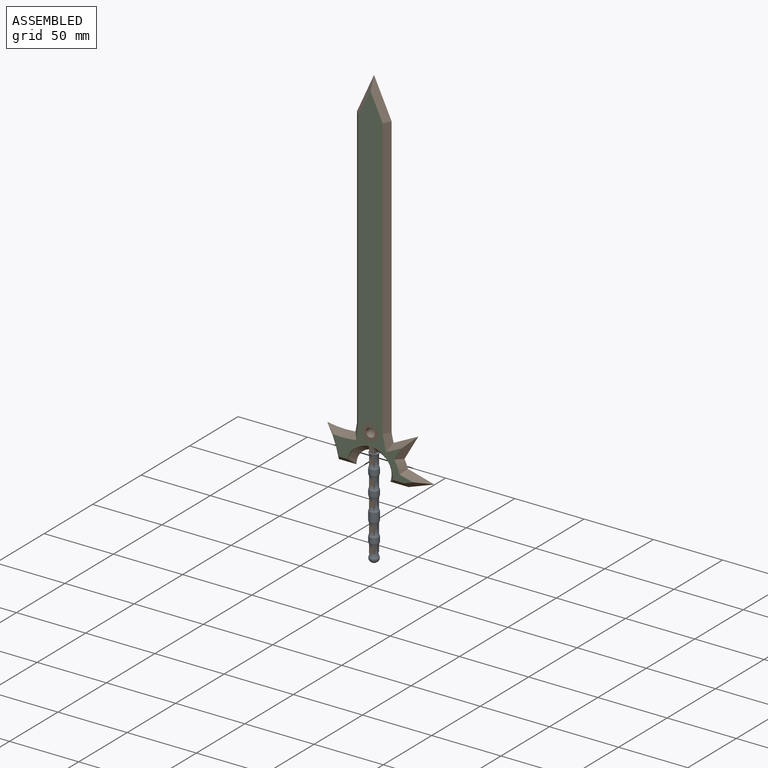
[diagram: assembled view]
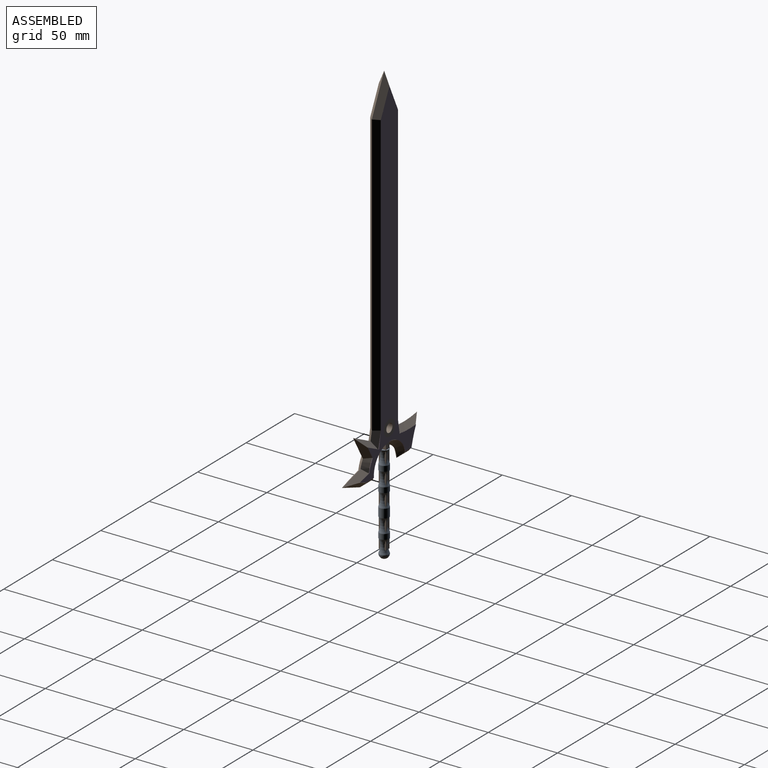
[diagram: assembled view, second angle]
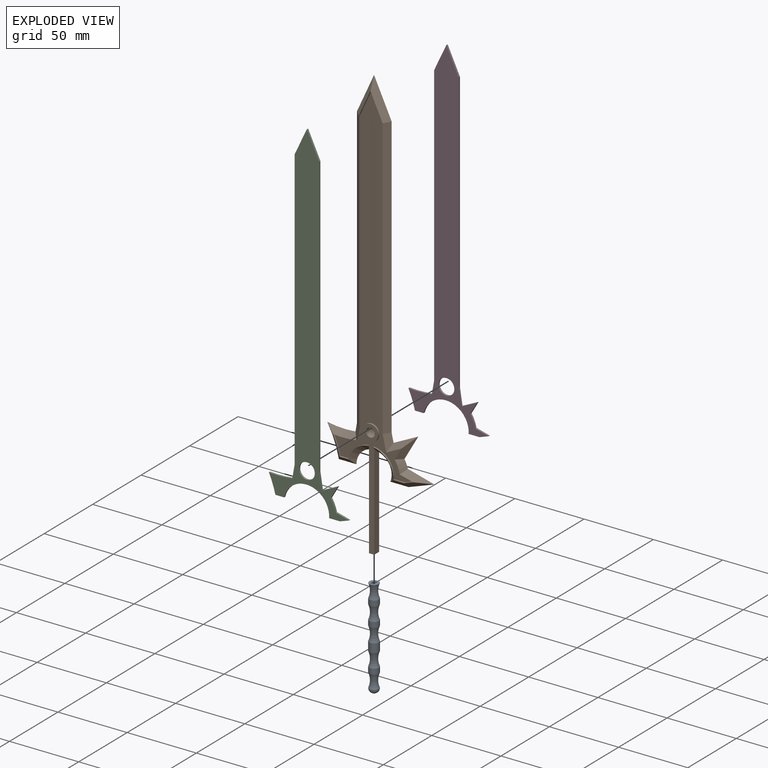
[diagram: exploded view]
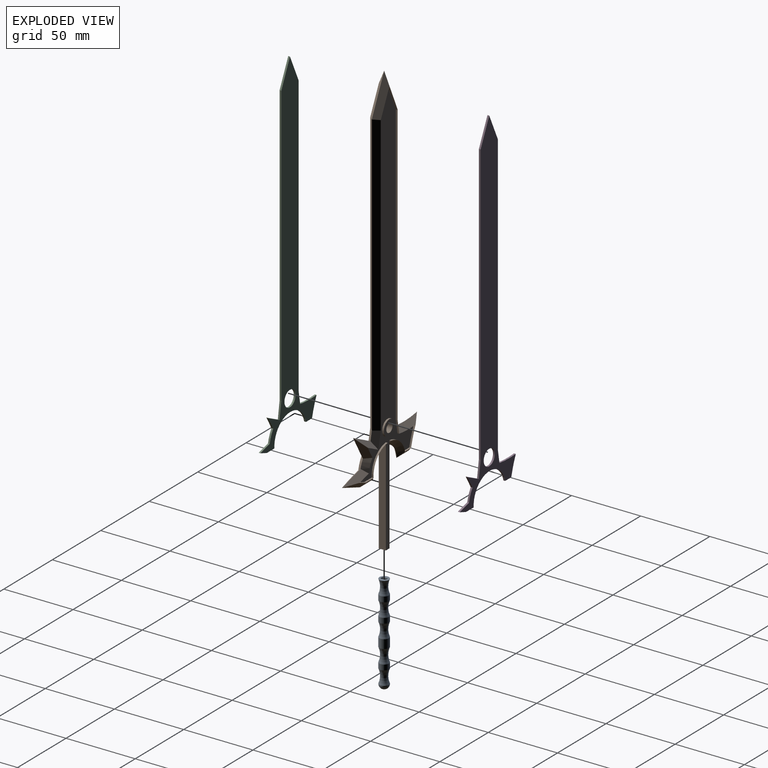
[diagram: exploded view, second angle]
ASSEMBLY  parts=4 mates=3
PART A: 16 faces, bbox 13.2x13.2x76.5 mm
  f0: plane 6.97x6.97mm, normal (0,0,1), area 28.5mm2, adj f1,f11,f12,f13,f14
  f1: torus R=15.12mm, axis (0,0,1), area 182.6mm2, adj f0,f2
  f2: cylinder r=3.48mm len=6.97mm, axis (0,0,1), area 83.4mm2, adj f1,f3
  f3: torus R=15.12mm, axis (0,0,1), area 182.6mm2, adj f2,f4
  f4: cylinder r=3.48mm len=6.97mm, axis (0,0,1), area 83.4mm2, adj f3,f5
  f5: torus R=15.12mm, axis (0,0,1), area 182.6mm2, adj f4,f6
  f6: cylinder r=3.48mm len=6.97mm, axis (0,0,1), area 139mm2, adj f5,f7
  f7: torus R=15.12mm, axis (0,0,1), area 182.6mm2, adj f6,f8
  f8: cylinder r=3.48mm len=6.97mm, axis (0,0,1), area 83.4mm2, adj f7,f9
  f9: torus R=15.12mm, axis (0,0,1), area 182.6mm2, adj f8,f10
  f10: sphere r=3.48mm, area 75.9mm2, adj f9
  f11: plane 65.53x3.81mm, normal (-1,0,0), area 249.7mm2, adj f0,f12,f14,f15
  f12: plane 65.53x2.54mm, normal (0,-1,0), area 166.5mm2, adj f0,f11,f13,f15
  f13: plane 65.53x3.81mm, normal (1,0,0), area 249.7mm2, adj f0,f12,f14,f15
  f14: plane 65.53x2.54mm, normal (0,1,0), area 166.5mm2, adj f0,f11,f13,f15
  f15: plane 3.81x2.54mm, normal (0,0,1), area 9.7mm2, adj f11,f12,f13,f14
PART B: 82 faces, bbox 78.5x8x312.2 mm
  f0: plane 69.39x5.11mm, normal (-1,0,0), area 345.8mm2, adj f3,f37,f39,f60,f81
  f1: plane 69.39x5.11mm, normal (1,0,0), area 345.8mm2, adj f3,f6,f7,f60,f81
  f2: plane 11.43x11.43mm, normal (0,1,0), area 70.9mm2, adj f4,f80
  f3: plane 5.08x3.81mm, normal (0,0,-1), area 19.4mm2, adj f0,f1,f60,f81
  f4: cylinder r=3.17mm len=7.62mm, axis (0,1,0), area 152mm2, adj f2,f5
  f5: plane 11.43x11.43mm, normal (0,-1,0), area 70.9mm2, adj f4,f58
  f6: cone r=12.7mm half-angle=45deg, axis (0,-1,0), area 129.3mm2, adj f1,f7,f8,f40,f44
  f7: cone r=16.51mm half-angle=45deg, axis (0,1,0), area 129.3mm2, adj f1,f6,f9,f78,f79
  f8: plane 13.2x3.81mm, normal (0,-0.71,-0.71), area 55.8mm2, adj f6,f9,f10,f45
  f9: plane 13.2x3.81mm, normal (0,0.71,-0.71), area 55.8mm2, adj f7,f8,f11,f77
  f10: plane 19.31x6.67mm, normal (0.24,-0.71,-0.67), area 71.9mm2, adj f8,f11,f12,f46
  f11: plane 19.31x6.67mm, normal (0.24,0.71,-0.67), area 71.9mm2, adj f9,f10,f13,f76
  f12: plane 22.48x5.77mm, normal (0.18,-0.71,0.68), area 79.8mm2, adj f10,f13,f14,f47
  f13: plane 22.48x5.77mm, normal (0.18,0.71,0.68), area 79.8mm2, adj f11,f12,f15,f75
  f14: cone r=21.59mm half-angle=45deg, axis (0,1,0), area 43.6mm2, adj f12,f15,f16,f48
  f15: cone r=25.4mm half-angle=45deg, axis (0,-1,0), area 43.6mm2, adj f13,f14,f17,f74
  f16: plane 17.57x14.64mm, normal (0.61,-0.71,-0.35), area 79.9mm2, adj f14,f17,f18,f49
  f17: plane 17.57x14.64mm, normal (0.61,0.71,-0.35), area 79.9mm2, adj f15,f16,f19,f73
  f18: plane 20.59x14.48mm, normal (-0.31,-0.71,0.63), area 86.9mm2, adj f16,f19,f20,f50
  f19: plane 20.59x14.48mm, normal (-0.31,0.71,0.63), area 86.9mm2, adj f17,f18,f21,f72
  f20: plane 11.88x5.21mm, normal (0.69,-0.71,0.15), area 49mm2, adj f18,f21,f22,f51
  f21: plane 11.88x5.21mm, normal (0.69,0.71,0.15), area 49mm2, adj f19,f20,f23,f71
  f22: plane 203.62x3.81mm, normal (0.71,-0.71,0), area 1093.7mm2, adj f20,f23,f24,f52
  f23: plane 203.62x3.81mm, normal (0.71,0.71,0), area 1093.7mm2, adj f21,f22,f25,f70
  f24: plane 27.79x12.7mm, normal (0.64,-0.71,0.3), area 136mm2, adj f22,f25,f26,f53
  f25: plane 27.79x12.7mm, normal (0.64,0.71,0.3), area 136mm2, adj f23,f24,f27,f69
  f26: plane 27.76x12.36mm, normal (-0.64,-0.71,0.29), area 135.2mm2, adj f24,f27,f28,f54
  f27: plane 27.76x12.36mm, normal (-0.64,0.71,0.29), area 135.2mm2, adj f25,f26,f29,f68
  f28: plane 203.53x3.81mm, normal (-0.71,-0.71,0), area 1093.5mm2, adj f26,f29,f30,f55
  f29: plane 203.53x3.81mm, normal (-0.71,0.71,0), area 1093.5mm2, adj f27,f28,f31,f67
  f30: plane 9.75x4.97mm, normal (-0.7,-0.71,0.12), area 42.7mm2, adj f28,f31,f32,f56
  f31: plane 9.75x4.97mm, normal (-0.7,0.71,0.12), area 42.7mm2, adj f29,f30,f33,f66
  f32: cone r=69.85mm half-angle=45deg, axis (0,-1,0), area 101.1mm2, adj f30,f33,f34,f57
  f33: cone r=73.66mm half-angle=45deg, axis (0,1,0), area 101.1mm2, adj f31,f32,f35,f65
  f34: cone r=69.85mm half-angle=45deg, axis (0,-1,0), area 102.9mm2, adj f32,f35,f36,f59
  f35: cone r=73.66mm half-angle=45deg, axis (0,1,0), area 102.9mm2, adj f33,f34,f38,f64
  f36: plane 13.08x4.19mm, normal (0,-0.71,-0.71), area 50.7mm2, adj f34,f37,f38,f41
  f37: cone r=12.7mm half-angle=45deg, axis (0,-1,0), area 103.7mm2, adj f0,f36,f39,f42,f43
  f38: plane 13.08x4.19mm, normal (0,0.71,-0.71), area 50.7mm2, adj f35,f36,f39,f63
  f39: cone r=16.51mm half-angle=45deg, axis (0,1,0), area 103.7mm2, adj f0,f37,f38,f61,f62
  f40: plane 1.29x1.28mm, normal (-1,0,0), area 0.8mm2, adj f6,f44,f60
  f41: plane 6.27x1.27mm, normal (0,0,1), area 8mm2, adj f36,f42,f59,f60
  f42: cylinder r=16.51mm len=14.16mm, axis (0,-1,0), area 25.6mm2, adj f37,f41,f43,f60
  f43: plane 1.29x1.28mm, normal (1,0,0), area 0.8mm2, adj f37,f42,f60
  f44: cylinder r=16.51mm len=17.44mm, axis (0,-1,0), area 31.8mm2, adj f6,f40,f45,f60
  f45: plane 7.79x1.27mm, normal (0,0,1), area 9.9mm2, adj f8,f44,f46,f60
  f46: plane 6.5x2.32mm, normal (-0.34,0,0.94), area 8.8mm2, adj f10,f45,f47,f60
  f47: plane 9.52x2.53mm, normal (-0.26,0,-0.97), area 12.5mm2, adj f12,f46,f48,f60
  f48: cylinder r=21.59mm len=8.79mm, axis (0,-1,0), area 12.2mm2, adj f14,f47,f49,f60
  f49: plane 8.39x4.86mm, normal (-0.87,0,0.5), area 12.3mm2, adj f16,f48,f50,f60
  f50: plane 10.96x5.44mm, normal (0.44,0,-0.9), area 15.5mm2, adj f18,f49,f51,f60
  f51: plane 11.47x2.54mm, normal (-0.98,0,-0.22), area 14.9mm2, adj f20,f50,f52,f60
  f52: plane 202.76x1.27mm, normal (-1,0,0), area 257.5mm2, adj f22,f51,f53,f60
  f53: plane 18.74x8.83mm, normal (-0.9,0,-0.43), area 26.3mm2, adj f24,f52,f54,f60
  f54: plane 18.71x8.55mm, normal (0.91,0,-0.42), area 26.1mm2, adj f26,f53,f55,f60
  f55: plane 202.7x1.27mm, normal (1,0,0), area 257.4mm2, adj f28,f54,f56,f60
  f56: plane 9.35x1.65mm, normal (0.98,0,-0.17), area 12.1mm2, adj f30,f55,f57,f60
  f57: cylinder r=73.66mm len=16.89mm, axis (0,-1,0), area 21.5mm2, adj f32,f56,f59,f60
  f58: cylinder r=5.71mm len=11.43mm, axis (0,-1,0), area 45.6mm2, adj f5,f60
  f59: cylinder r=73.66mm len=13.47mm, axis (0,-1,0), area 18.1mm2, adj f34,f41,f57,f60
  f60: plane 302.76x57.8mm, normal (0,-1,0), area 4385.2mm2, adj f0,f1,f3,f40,f41,f42,f43,f44
  f61: plane 1.29x1.28mm, normal (1,0,0), area 0.8mm2, adj f39,f62,f81
  f62: cylinder r=16.51mm len=14.16mm, axis (0,1,0), area 25.6mm2, adj f39,f61,f63,f81
  f63: plane 6.27x1.27mm, normal (0,0,1), area 8mm2, adj f38,f62,f64,f81
  f64: cylinder r=73.66mm len=13.47mm, axis (0,1,0), area 18.1mm2, adj f35,f63,f65,f81
  f65: cylinder r=73.66mm len=16.89mm, axis (0,1,0), area 21.5mm2, adj f33,f64,f66,f81
  f66: plane 9.35x1.65mm, normal (0.98,0,-0.17), area 12.1mm2, adj f31,f65,f67,f81
  f67: plane 202.7x1.27mm, normal (1,0,0), area 257.4mm2, adj f29,f66,f68,f81
  f68: plane 18.71x8.55mm, normal (0.91,0,-0.42), area 26.1mm2, adj f27,f67,f69,f81
  f69: plane 18.74x8.83mm, normal (-0.9,0,-0.43), area 26.3mm2, adj f25,f68,f70,f81
  f70: plane 202.76x1.27mm, normal (-1,0,0), area 257.5mm2, adj f23,f69,f71,f81
  f71: plane 11.47x2.54mm, normal (-0.98,0,-0.22), area 14.9mm2, adj f21,f70,f72,f81
  f72: plane 10.96x5.44mm, normal (0.44,0,-0.9), area 15.5mm2, adj f19,f71,f73,f81
  f73: plane 8.39x4.86mm, normal (-0.87,0,0.5), area 12.3mm2, adj f17,f72,f74,f81
  f74: cylinder r=21.59mm len=8.79mm, axis (0,1,0), area 12.2mm2, adj f15,f73,f75,f81
  f75: plane 9.52x2.53mm, normal (-0.26,0,-0.97), area 12.5mm2, adj f13,f74,f76,f81
  f76: plane 6.5x2.32mm, normal (-0.34,0,0.94), area 8.8mm2, adj f11,f75,f77,f81
  f77: plane 7.79x1.27mm, normal (0,0,1), area 9.9mm2, adj f9,f76,f78,f81
  f78: cylinder r=16.51mm len=17.44mm, axis (0,1,0), area 31.8mm2, adj f7,f77,f79,f81
  f79: plane 1.29x1.28mm, normal (-1,0,0), area 0.8mm2, adj f7,f78,f81
  f80: cylinder r=5.71mm len=11.43mm, axis (0,1,0), area 45.6mm2, adj f2,f81
  f81: plane 302.76x57.8mm, normal (0,1,0), area 4385.2mm2, adj f0,f1,f3,f61,f62,f63,f64,f65
PART C: 19 faces, bbox 58x1.3x249.7 mm
  f0: plane 18.86x8.89mm, normal (0.9,0,0.43), area 26.5mm2, adj f1,f16,f17,f18
  f1: plane 18.86x8.89mm, normal (-0.9,0,0.43), area 26.5mm2, adj f0,f2,f17,f18
  f2: plane 202.68x1.27mm, normal (-1,0,0), area 257.4mm2, adj f1,f3,f17,f18
  f3: plane 9.35x1.65mm, normal (-0.98,0,0.17), area 12.1mm2, adj f2,f4,f17,f18
  f4: cylinder r=76.2mm len=16.89mm, axis (0,1,0), area 21.5mm2, adj f3,f5,f17,f18
  f5: cylinder r=76.2mm len=13.47mm, axis (0,1,0), area 18.1mm2, adj f4,f6,f17,f18
  f6: plane 6.27x1.27mm, normal (0,0,-1), area 8mm2, adj f5,f7,f17,f18
  f7: cylinder r=16.51mm len=32.57mm, axis (0,1,0), area 62.3mm2, adj f6,f8,f17,f18
  f8: plane 7.8x1.27mm, normal (0,0,-1), area 9.9mm2, adj f7,f9,f17,f18
  f9: plane 6.66x2.34mm, normal (0.33,0,-0.94), area 9mm2, adj f8,f10,f17,f18
  f10: plane 9.69x2.52mm, normal (0.25,0,0.97), area 12.7mm2, adj f9,f11,f17,f18
  f11: cylinder r=25.4mm len=8.56mm, axis (0,1,0), area 11.8mm2, adj f10,f12,f17,f18
  f12: plane 8.76x5.11mm, normal (0.86,0,-0.5), area 12.9mm2, adj f11,f13,f17,f18
  f13: plane 11.68x5.67mm, normal (-0.44,0,0.9), area 16.5mm2, adj f12,f14,f17,f18
  f14: plane 11.68x1.84mm, normal (0.99,0,0.16), area 15mm2, adj f13,f16,f17,f18
  f15: cylinder r=5.71mm len=11.43mm, axis (0,1,0), area 45.6mm2, adj f17,f18
  f16: plane 202.65x1.27mm, normal (1,0,0), area 257.4mm2, adj f0,f14,f17,f18
  f17: plane 249.69x57.97mm, normal (0,-1,0), area 4205.1mm2, adj f0,f1,f2,f3,f4,f5,f6,f7
  f18: plane 249.69x57.97mm, normal (0,1,0), area 4205.1mm2, adj f0,f1,f2,f3,f4,f5,f6,f7
PART D: 19 faces, bbox 58x1.3x249.7 mm
  f0: plane 18.86x8.89mm, normal (0.9,0,0.43), area 26.5mm2, adj f1,f16,f17,f18
  f1: plane 18.86x8.89mm, normal (-0.9,0,0.43), area 26.5mm2, adj f0,f2,f17,f18
  f2: plane 202.68x1.27mm, normal (-1,0,0), area 257.4mm2, adj f1,f3,f17,f18
  f3: plane 9.35x1.65mm, normal (-0.98,0,0.17), area 12.1mm2, adj f2,f4,f17,f18
  f4: cylinder r=76.2mm len=16.89mm, axis (0,1,0), area 21.5mm2, adj f3,f5,f17,f18
  f5: cylinder r=76.2mm len=13.47mm, axis (0,1,0), area 18.1mm2, adj f4,f6,f17,f18
  f6: plane 6.27x1.27mm, normal (0,0,-1), area 8mm2, adj f5,f7,f17,f18
  f7: cylinder r=16.51mm len=32.57mm, axis (0,1,0), area 62.3mm2, adj f6,f8,f17,f18
  f8: plane 7.8x1.27mm, normal (0,0,-1), area 9.9mm2, adj f7,f9,f17,f18
  f9: plane 6.66x2.34mm, normal (0.33,0,-0.94), area 9mm2, adj f8,f10,f17,f18
  f10: plane 9.69x2.52mm, normal (0.25,0,0.97), area 12.7mm2, adj f9,f11,f17,f18
  f11: cylinder r=25.4mm len=8.56mm, axis (0,1,0), area 11.8mm2, adj f10,f12,f17,f18
  f12: plane 8.76x5.11mm, normal (0.86,0,-0.5), area 12.9mm2, adj f11,f13,f17,f18
  f13: plane 11.68x5.67mm, normal (-0.44,0,0.9), area 16.5mm2, adj f12,f14,f17,f18
  f14: plane 11.68x1.84mm, normal (0.99,0,0.16), area 15mm2, adj f13,f16,f17,f18
  f15: cylinder r=5.71mm len=11.43mm, axis (0,1,0), area 45.6mm2, adj f17,f18
  f16: plane 202.65x1.27mm, normal (1,0,0), area 257.4mm2, adj f0,f14,f17,f18
  f17: plane 249.69x57.97mm, normal (0,-1,0), area 4205.1mm2, adj f0,f1,f2,f3,f4,f5,f6,f7
  f18: plane 249.69x57.97mm, normal (0,1,0), area 4205.1mm2, adj f0,f1,f2,f3,f4,f5,f6,f7
PLACE A t=(295.61,70.57,-59.72)mm
PLACE B t=(-156.05,70.57,74.74)mm
PLACE C t=(28.05,68.03,39.06)mm
PLACE D t=(116.72,74.38,18.88)mm
MATE fastened D.f15 <-> B.f4  axis (0,1,0) through (-156.05,74.38,23.86)mm
MATE fastened B.f4 <-> C.f15  axis (0,-1,0) through (-156.05,66.76,23.86)mm
MATE fastened A.f1 <-> B.f3  axis (0,0,1) through (-156.05,70.57,-55.78)mm
